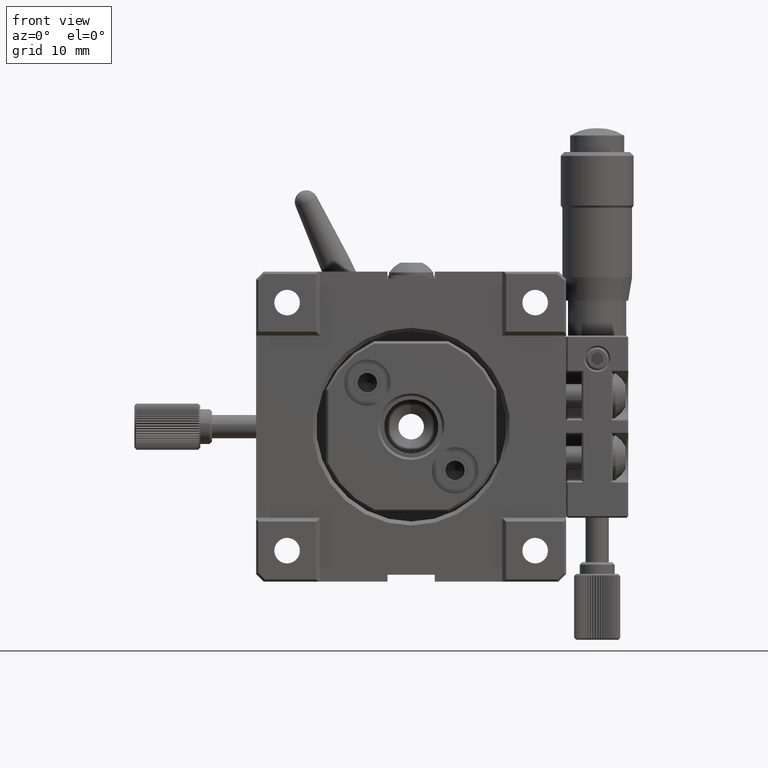
[diagram: clean part render]
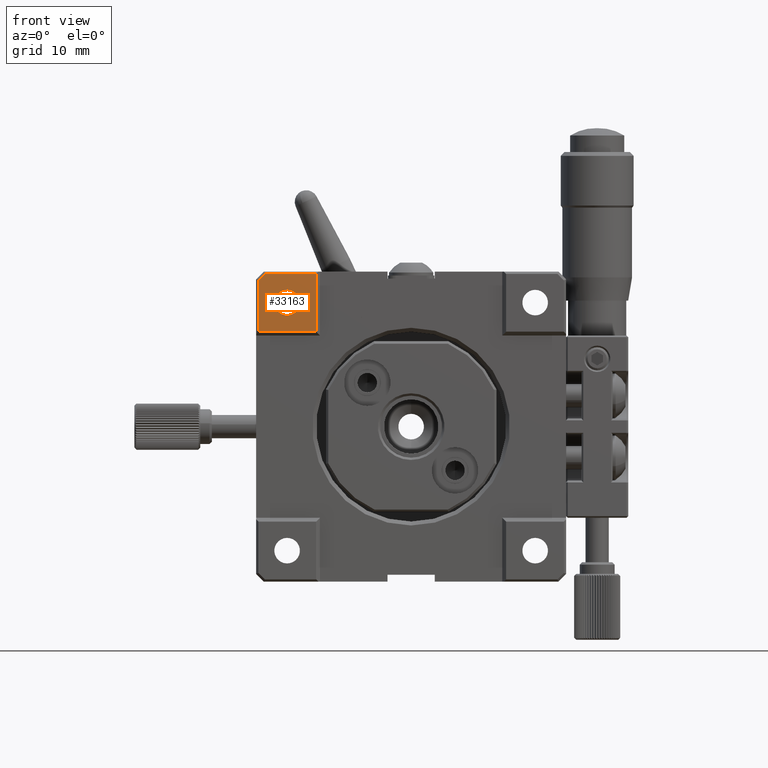
[diagram: same view with one face highlighted and labeled with its STEP entity id]
A machine part, front view. The second image highlights one B-rep face of the part: STEP entity #33163.
In plain terms, the highlighted planar face has unit normal (0, -1, 0).
Its self-contained STEP definition (entity closure, byte-faithful):
#12 = CIRCLE ( 'NONE', #1292, 1.649999999999998579 ) ;
#1292 = AXIS2_PLACEMENT_3D ( 'NONE', #42312, #18068, #30376 ) ;
#3983 = VERTEX_POINT ( 'NONE', #35615 ) ;
#6684 = VECTOR ( 'NONE', #50985, 1000.000000000000000 ) ;
#6841 = EDGE_CURVE ( 'NONE', #44344, #3983, #32457, .T. ) ;
#9084 = ORIENTED_EDGE ( 'NONE', *, *, #42347, .T. ) ;
#9711 = FACE_BOUND ( 'NONE', #45378, .T. ) ;
#10584 = VERTEX_POINT ( 'NONE', #26608 ) ;
#11714 = DIRECTION ( 'NONE',  ( 0.000000000000000000, 0.000000000000000000, -1.000000000000000000 ) ) ;
#12039 = EDGE_CURVE ( 'NONE', #62618, #22072, #69098, .T. ) ;
#14988 = ORIENTED_EDGE ( 'NONE', *, *, #6841, .T. ) ;
#16055 = ORIENTED_EDGE ( 'NONE', *, *, #12039, .F. ) ;
#16176 = LINE ( 'NONE', #60112, #70969 ) ;
#18068 = DIRECTION ( 'NONE',  ( 0.000000000000000000, 1.000000000000000000, 0.000000000000000000 ) ) ;
#18317 = EDGE_CURVE ( 'NONE', #54401, #31996, #32599, .T. ) ;
#19123 = DIRECTION ( 'NONE',  ( -1.000000000000000000, 0.000000000000000000, 0.000000000000000000 ) ) ;
#22072 = VERTEX_POINT ( 'NONE', #50242 ) ;
#23057 = EDGE_CURVE ( 'NONE', #3983, #10584, #42914, .T. ) ;
#24327 = EDGE_LOOP ( 'NONE', ( #16055, #80300, #14988, #30587, #54519 ) ) ;
#25885 = CARTESIAN_POINT ( 'NONE',  ( -19.78786796564405037, 0.000000000000000000, 18.78786796564405037 ) ) ;
#25946 = CARTESIAN_POINT ( 'NONE',  ( -12.25000000000000000, 0.000000000000000000, 24.72247085850424853 ) ) ;
#26608 = CARTESIAN_POINT ( 'NONE',  ( -19.69999999999999929, 0.000000000000000000, 12.25000000000000000 ) ) ;
#26936 = PLANE ( 'NONE',  #70332 ) ;
#28105 = VECTOR ( 'NONE', #75215, 1000.000000000000114 ) ;
#28562 = DIRECTION ( 'NONE',  ( 0.000000000000000000, 0.000000000000000000, -1.000000000000000000 ) ) ;
#30144 = CARTESIAN_POINT ( 'NONE',  ( -12.25000000000000000, 0.000000000000000000, 19.69999999999999929 ) ) ;
#30376 = DIRECTION ( 'NONE',  ( 0.000000000000000000, 0.000000000000000000, 1.000000000000000000 ) ) ;
#30587 = ORIENTED_EDGE ( 'NONE', *, *, #23057, .T. ) ;
#30642 = CARTESIAN_POINT ( 'NONE',  ( -27.93529802276665208, 0.000000000000000000, 12.25000000000000000 ) ) ;
#31996 = VERTEX_POINT ( 'NONE', #75507 ) ;
#32457 = LINE ( 'NONE', #25885, #28105 ) ;
#32599 = CIRCLE ( 'NONE', #56217, 1.649999999999998579 ) ;
#33163 = ADVANCED_FACE ( 'NONE', ( #53199, #9711 ), #26936, .T. ) ;
#34737 = CARTESIAN_POINT ( 'NONE',  ( 20.00000000000000000, 0.000000000000000000, -20.00000000000000000 ) ) ;
#35615 = CARTESIAN_POINT ( 'NONE',  ( -19.69999999999999929, 0.000000000000000000, 18.87573593128804816 ) ) ;
#36792 = EDGE_CURVE ( 'NONE', #22072, #10584, #51128, .T. ) ;
#40610 = DIRECTION ( 'NONE',  ( 0.000000000000000000, 1.000000000000000000, 0.000000000000000000 ) ) ;
#41888 = ORIENTED_EDGE ( 'NONE', *, *, #18317, .T. ) ;
#42312 = CARTESIAN_POINT ( 'NONE',  ( -16.00000000000000000, 0.000000000000000000, 16.00000000000000000 ) ) ;
#42347 = EDGE_CURVE ( 'NONE', #31996, #54401, #12, .T. ) ;
#42914 = LINE ( 'NONE', #67968, #72828 ) ;
#44344 = VERTEX_POINT ( 'NONE', #80645 ) ;
#45378 = EDGE_LOOP ( 'NONE', ( #41888, #9084 ) ) ;
#50242 = CARTESIAN_POINT ( 'NONE',  ( -12.25000000000000000, 0.000000000000000000, 12.25000000000000000 ) ) ;
#50985 = DIRECTION ( 'NONE',  ( 0.000000000000000000, 0.000000000000000000, -1.000000000000000000 ) ) ;
#51128 = LINE ( 'NONE', #30642, #57387 ) ;
#53199 = FACE_OUTER_BOUND ( 'NONE', #24327, .T. ) ;
#54401 = VERTEX_POINT ( 'NONE', #59761 ) ;
#54519 = ORIENTED_EDGE ( 'NONE', *, *, #36792, .F. ) ;
#56217 = AXIS2_PLACEMENT_3D ( 'NONE', #60708, #40610, #59882 ) ;
#57387 = VECTOR ( 'NONE', #19123, 1000.000000000000000 ) ;
#59305 = DIRECTION ( 'NONE',  ( -1.000000000000000000, 0.000000000000000000, 0.000000000000000000 ) ) ;
#59761 = CARTESIAN_POINT ( 'NONE',  ( -16.00000000000000000, 0.000000000000000000, 17.64999999999999858 ) ) ;
#59882 = DIRECTION ( 'NONE',  ( 0.000000000000000000, 0.000000000000000000, 1.000000000000000000 ) ) ;
#60112 = CARTESIAN_POINT ( 'NONE',  ( -19.00000000000000000, 0.000000000000000000, 19.69999999999999929 ) ) ;
#60708 = CARTESIAN_POINT ( 'NONE',  ( -16.00000000000000000, 0.000000000000000000, 16.00000000000000000 ) ) ;
#62618 = VERTEX_POINT ( 'NONE', #30144 ) ;
#64742 = DIRECTION ( 'NONE',  ( 0.000000000000000000, -1.000000000000000000, 0.000000000000000000 ) ) ;
#67968 = CARTESIAN_POINT ( 'NONE',  ( -19.69999999999999929, 0.000000000000000000, -19.00000000000000000 ) ) ;
#68656 = EDGE_CURVE ( 'NONE', #62618, #44344, #16176, .T. ) ;
#69098 = LINE ( 'NONE', #25946, #6684 ) ;
#70332 = AXIS2_PLACEMENT_3D ( 'NONE', #34737, #64742, #28562 ) ;
#70969 = VECTOR ( 'NONE', #59305, 1000.000000000000000 ) ;
#72828 = VECTOR ( 'NONE', #11714, 1000.000000000000000 ) ;
#75215 = DIRECTION ( 'NONE',  ( -0.7071067811865474617, 0.000000000000000000, -0.7071067811865474617 ) ) ;
#75507 = CARTESIAN_POINT ( 'NONE',  ( -16.00000000000000000, 0.000000000000000000, 14.34999999999999964 ) ) ;
#80300 = ORIENTED_EDGE ( 'NONE', *, *, #68656, .T. ) ;
#80645 = CARTESIAN_POINT ( 'NONE',  ( -18.87573593128804816, 0.000000000000000000, 19.69999999999999929 ) ) ;